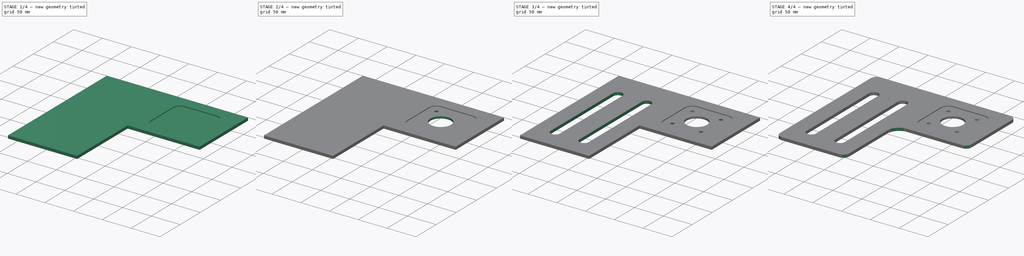
[diagram: build sequence overview — one tinted view per stage of 4, left to right]
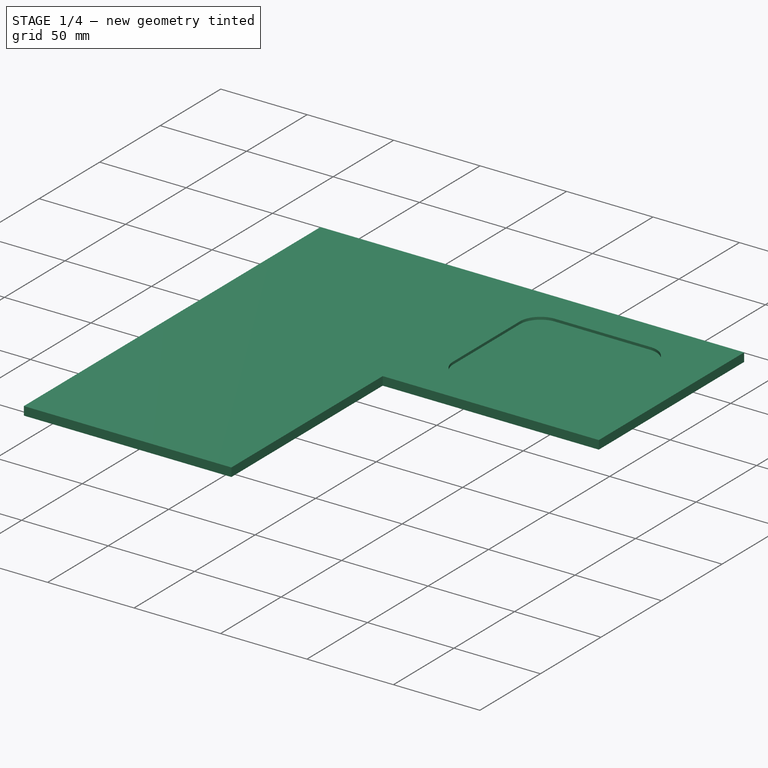
[diagram: stage 1 of 4 — iso view after this stage's code; geometry added in this stage tinted green]
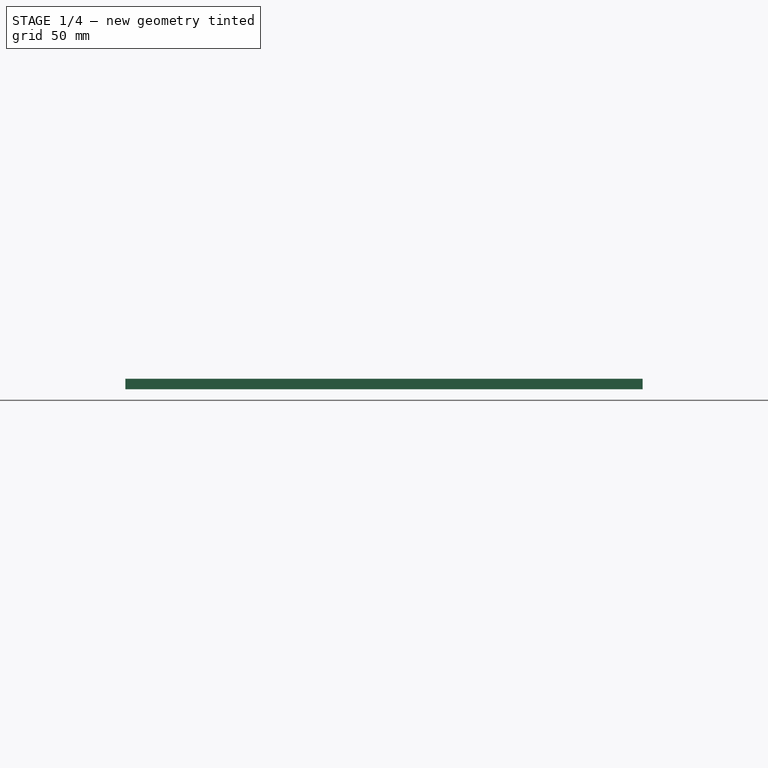
[diagram: stage 1 of 4 — front view after this stage's code; geometry added in this stage tinted green]
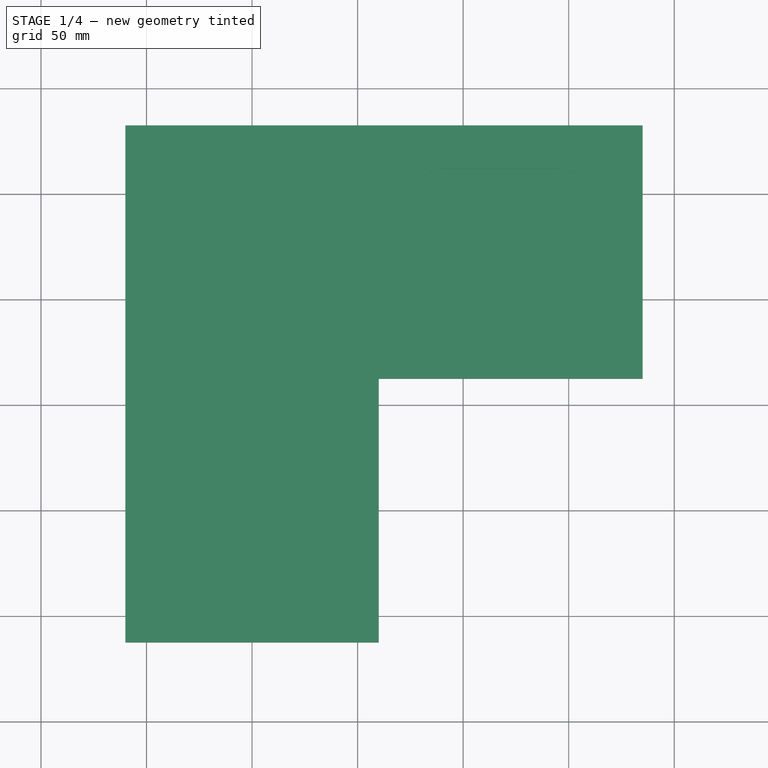
[diagram: stage 1 of 4 — top view after this stage's code; geometry added in this stage tinted green]
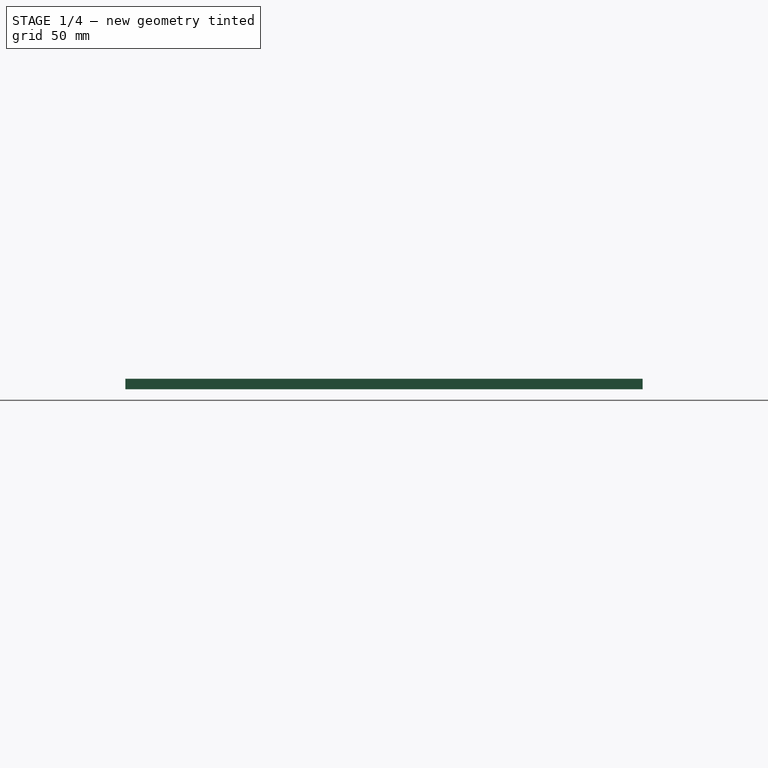
[diagram: stage 1 of 4 — right view after this stage's code; geometry added in this stage tinted green]
FCSTD DOCUMENT  (FreeCAD 0.17R13327 (Git))
Label: MOTORPLATE
License: All rights reserved
LicenseURL: http://en.wikipedia.org/wiki/All_rights_reserved
objects: Sketcher::SketchObject×5, PartDesign::Pocket×4, PartDesign::Fillet×2, PartDesign::Pad×1, PartDesign::Line×1, PartDesign::PolarPattern×1, PartDesign::Mirrored×1, PartDesign::Body×1
note: 21 computed .brp shape members not serialized (recipe doc carries the construction recipe); baked Part::Feature solids carry a one-line shape summary decoded from their .brp

FEATURE [Sketcher::SketchObject] Sketch
  MapMode = 5
  Support = -> [XY_Plane]
  sketch-geometry (6):
    g0: LineSegment StartX=-60 StartY=-62.5 StartZ=0 EndX=-60 EndY=182.5 EndZ=0
    g1: LineSegment StartX=-60 StartY=182.5 StartZ=0 EndX=185 EndY=182.5 EndZ=0
    g2: LineSegment StartX=185 StartY=182.5 StartZ=0 EndX=185 EndY=62.5 EndZ=0
    g3: LineSegment StartX=185 StartY=62.5 StartZ=0 EndX=60 EndY=62.5 EndZ=0
    g4: LineSegment StartX=60 StartY=62.5 StartZ=0 EndX=60 EndY=-62.5 EndZ=0
    g5: LineSegment StartX=60 StartY=-62.5 StartZ=0 EndX=-60 EndY=-62.5 EndZ=0
  constraints (18):
    c: Vertical(g0)
    c: Coincident(g0,g1)
    c: Horizontal(g1)
    c: Coincident(g1,g2)
    c: Vertical(g2)
    c: Coincident(g2,g3)
    c: Horizontal(g3)
    c: Coincident(g3,g4)
    c: Vertical(g4)
    c: Coincident(g4,g5)
    c: Coincident(g5,g0)
    c: Horizontal(g5)
    c: Equal(g3,g4)
    c: Equal(g2,g5)
    c: Symmetric(g0,g4,g-2)
    c: Symmetric(g4,g3,g-1)
    c: DistanceY(g2,g2) = 120
    c: DistanceY(g4,g4) = 125
FEATURE [PartDesign::Pad] Pad
  Length = 5
  Length2 = 100
  Profile = -> Sketch
  Type = 0
FEATURE [Sketcher::SketchObject] Sketch001
  MapMode = 5
  Placement = pos=(0,0,5) rot=(0,0,1;0rad)
  Support = -> [Pad]
  sketch-geometry (8):
    g0: LineSegment StartX=90 StartY=162 StartZ=0 EndX=145 EndY=162 EndZ=0
    g1: LineSegment StartX=157 StartY=150 StartZ=0 EndX=157 EndY=95 EndZ=0
    g2: LineSegment StartX=145 StartY=83 StartZ=0 EndX=90 EndY=83 EndZ=0
    g3: LineSegment StartX=78 StartY=95 StartZ=0 EndX=78 EndY=150 EndZ=0
    g4: ArcOfCircle CenterX=90 CenterY=150 CenterZ=0 NormalX=0 NormalY=0 NormalZ=1 AngleXU=0 Radius=12 StartAngle=1.5708 EndAngle=3.14159
    g5: ArcOfCircle CenterX=145 CenterY=150 CenterZ=0 NormalX=0 NormalY=0 NormalZ=1 AngleXU=0 Radius=12 StartAngle=0 EndAngle=1.5708
    g6: ArcOfCircle CenterX=145 CenterY=95 CenterZ=0 NormalX=0 NormalY=0 NormalZ=1 AngleXU=0 Radius=12 StartAngle=4.71239 EndAngle=6.28319
    g7: ArcOfCircle CenterX=90 CenterY=95 CenterZ=0 NormalX=0 NormalY=0 NormalZ=1 AngleXU=0 Radius=12 StartAngle=3.14159 EndAngle=4.71239
  constraints (22):
    c: Horizontal(g0)
    c: Horizontal(g2)
    c: Vertical(g1)
    c: Vertical(g3)
    c: Tangent(g0,g4) = 1.5708
    c: Tangent(g3,g4) = 1.5708
    c: Tangent(g0,g5) = 1.5708
    c: Tangent(g1,g5) = 1.5708
    c: Tangent(g1,g6) = 1.5708
    c: Tangent(g2,g6) = 1.5708
    c: Tangent(g3,g7) = 1.5708
    c: Tangent(g2,g7) = 1.5708
    c: Equal(g4,g5)
    c: Equal(g5,g6)
    c: Equal(g6,g7)
    c: Equal(g0,g1)
    c: Equal(g1,g2)
    c: Equal(g2,g3)
    c: DistanceY(g3,g3) = 55
    c: Radius(g4) = 12
    c: DistanceX(g7) = 90
    c: DistanceY(g7) = 95
FEATURE [PartDesign::Pocket] Pocket
  BaseFeature = -> Pad
  Length = 1.5
  Length2 = 100
  Profile = -> Sketch001
  Type = 0
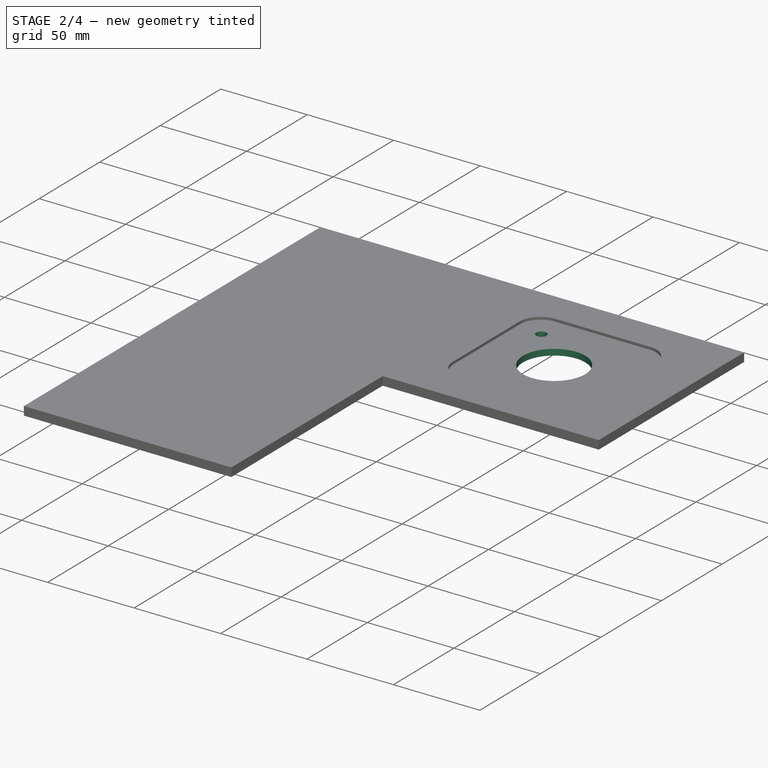
[diagram: stage 2 of 4 — iso view after this stage's code; geometry added in this stage tinted green]
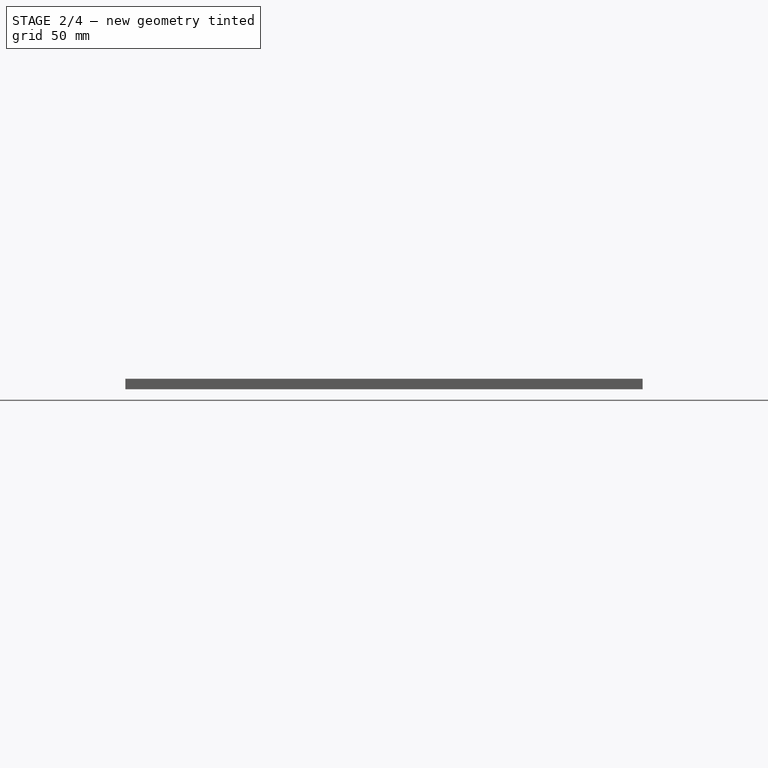
[diagram: stage 2 of 4 — front view after this stage's code; geometry added in this stage tinted green]
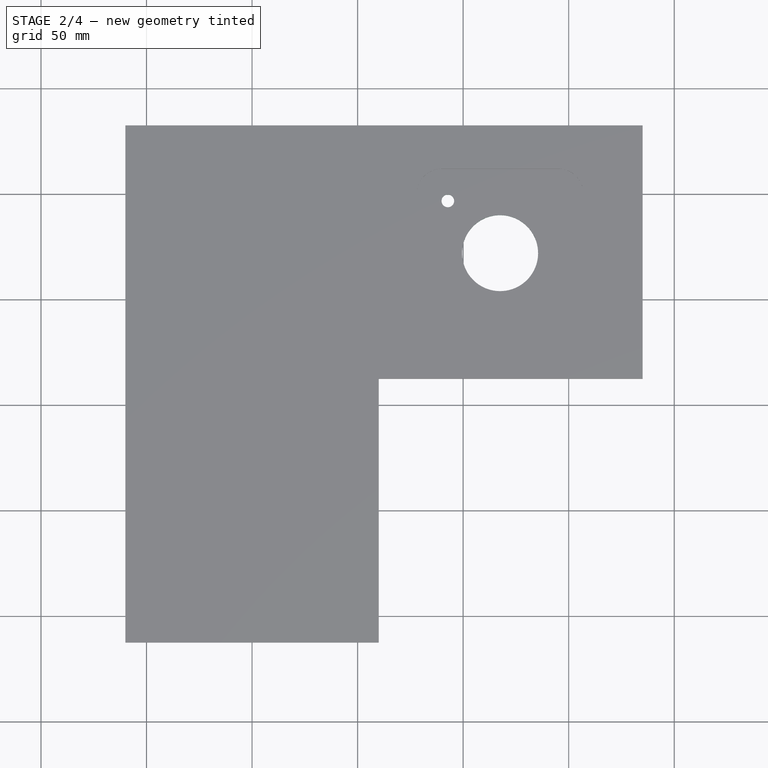
[diagram: stage 2 of 4 — top view after this stage's code; geometry added in this stage tinted green]
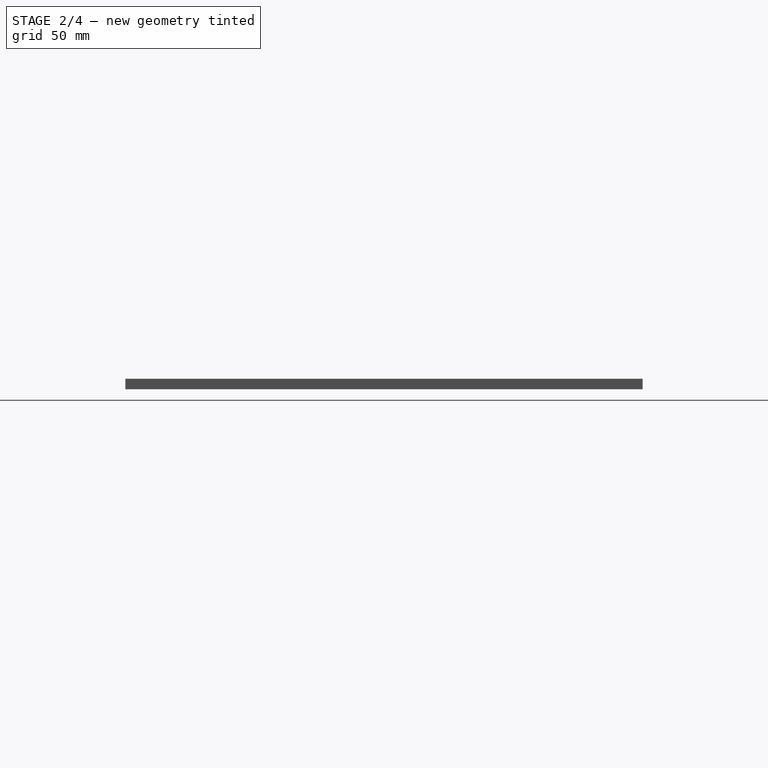
[diagram: stage 2 of 4 — right view after this stage's code; geometry added in this stage tinted green]
FEATURE [Sketcher::SketchObject] Sketch002
  ExternalGeometry = -> [Pocket]
  MapMode = 5
  Placement = pos=(0,0,3.5) rot=(0,0,1;0rad)
  Support = -> [Pocket]
  sketch-geometry (2):
    g0: Circle CenterX=117.5 CenterY=122 CenterZ=0 NormalX=0 NormalY=0 NormalZ=1 AngleXU=0 Radius=18
    g1: LineSegment [constr] StartX=117.5 StartY=122 StartZ=0 EndX=117.5 EndY=162 EndZ=0
  constraints (6):
    c: Coincident(g1,g0)
    c: Vertical(g1)
    c: PointOnObject(g1,g-3)
    c: Symmetric(g-3,g-3,g1)
    c: Radius(g0) = 18
    c: DistanceY(g1,g1) = 40
FEATURE [PartDesign::Pocket] Pocket001
  BaseFeature = -> Pocket
  Length = 5
  Length2 = 100
  Profile = -> Sketch002
  Type = 0
FEATURE [PartDesign::Line] DatumLine
  AttacherType = Attacher::AttachEngineLine
  MapMode = 19
  Placement = pos=(117.5,122,3.5) rot=(0,0,1;0rad)
  Support = -> [Pocket001]
FEATURE [Sketcher::SketchObject] Sketch003
  ExternalGeometry = -> [Pocket001]
  MapMode = 5
  Placement = pos=(0,0,3.5) rot=(0,0,1;0rad)
  Support = -> [Pocket001]
  sketch-geometry (2):
    g0: Circle CenterX=92.7513 CenterY=146.749 CenterZ=0 NormalX=0 NormalY=0 NormalZ=1 AngleXU=0 Radius=3
    g1: LineSegment [constr] StartX=92.7513 StartY=146.749 StartZ=0 EndX=117.5 EndY=122 EndZ=0
  constraints (5):
    c: Radius(g0) = 3
    c: Coincident(g1,g0)
    c: Coincident(g1,g-3)
    c: Distance(g1) = 35
    c: Angle(g1) = -0.785398
FEATURE [PartDesign::Pocket] Pocket002
  BaseFeature = -> Pocket001
  Length = 5
  Length2 = 100
  Profile = -> Sketch003
  Type = 0
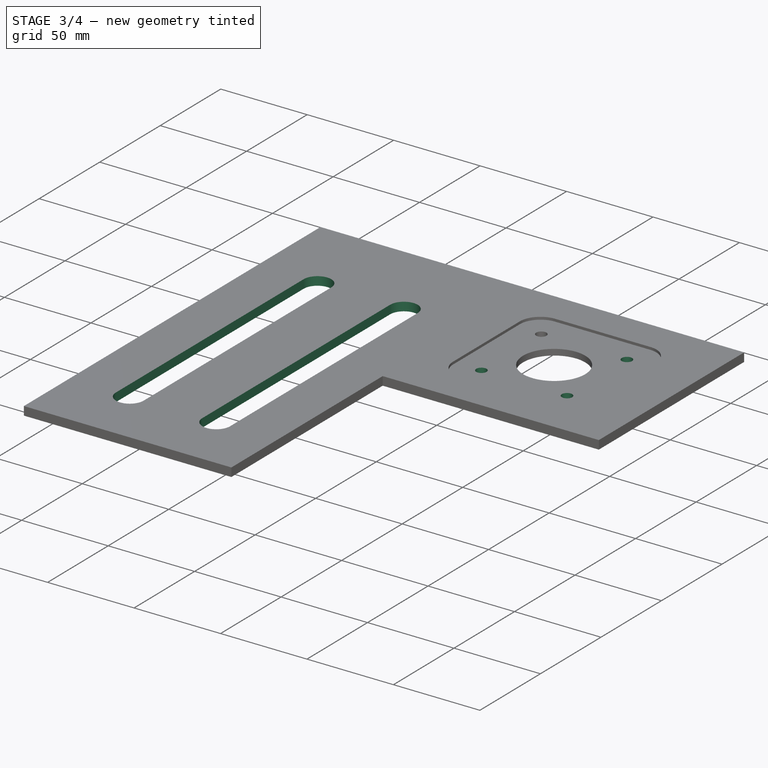
[diagram: stage 3 of 4 — iso view after this stage's code; geometry added in this stage tinted green]
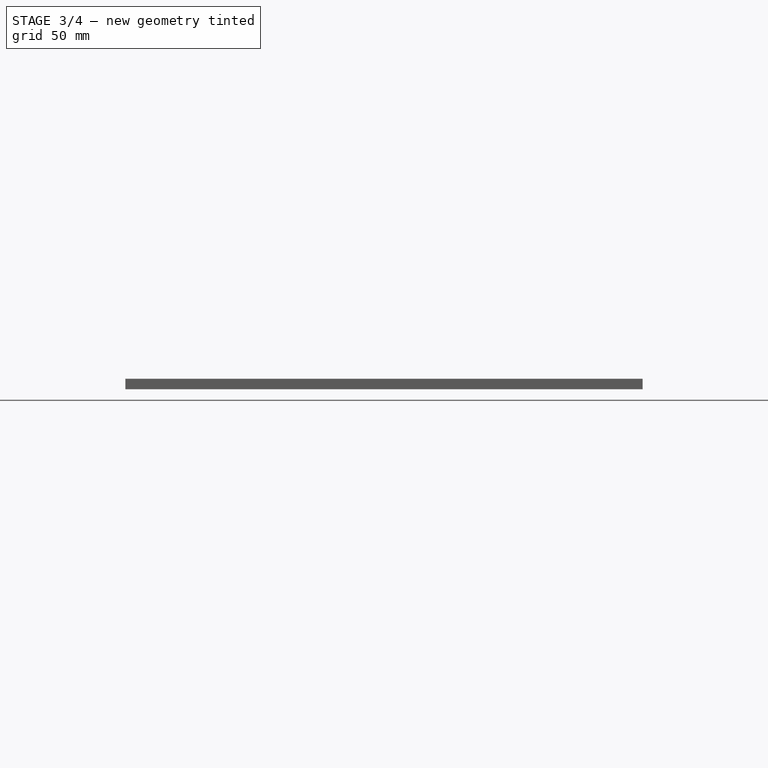
[diagram: stage 3 of 4 — front view after this stage's code; geometry added in this stage tinted green]
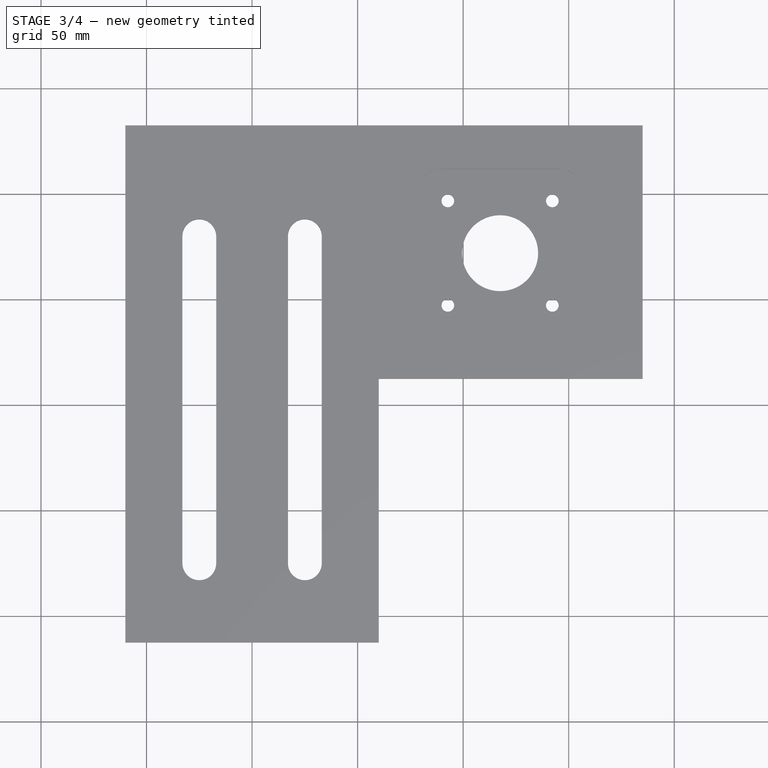
[diagram: stage 3 of 4 — top view after this stage's code; geometry added in this stage tinted green]
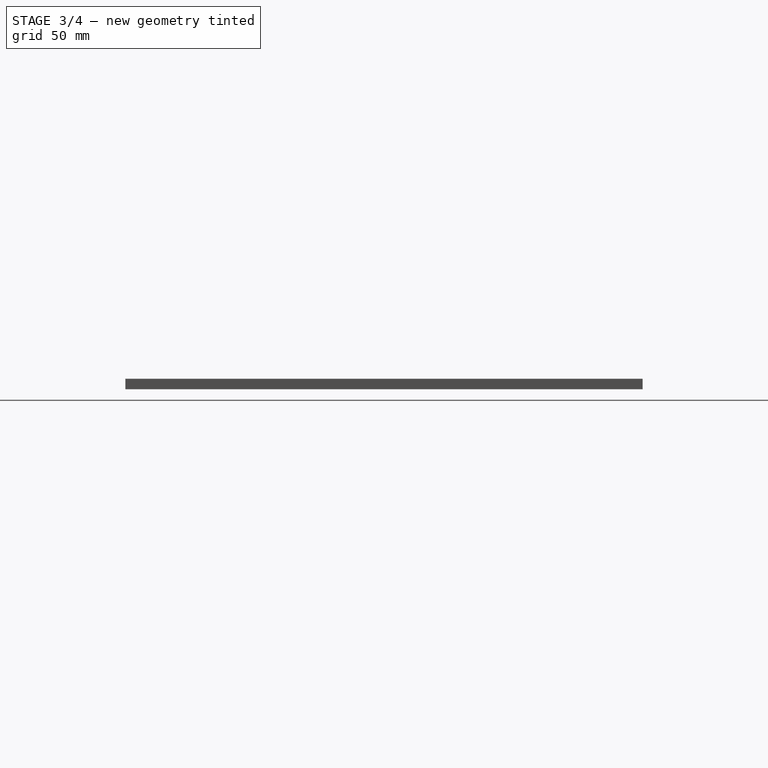
[diagram: stage 3 of 4 — right view after this stage's code; geometry added in this stage tinted green]
FEATURE [PartDesign::PolarPattern] PolarPattern
  Angle = 360
  Axis = -> DatumLine
  BaseFeature = -> Pocket002
  Occurrences = 4
  Originals = -> [Pocket002]
FEATURE [Sketcher::SketchObject] Sketch004
  MapMode = 5
  Placement = pos=(0,0,5) rot=(0,0,1;0rad)
  Support = -> [PolarPattern]
  sketch-geometry (4):
    g0: ArcOfCircle CenterX=-25 CenterY=-25 CenterZ=0 NormalX=0 NormalY=0 NormalZ=1 AngleXU=0 Radius=8 StartAngle=3.14159 EndAngle=6.28319
    g1: ArcOfCircle CenterX=-25 CenterY=130 CenterZ=0 NormalX=0 NormalY=0 NormalZ=1 AngleXU=0 Radius=8 StartAngle=0 EndAngle=3.14159
    g2: LineSegment StartX=-17 StartY=-25 StartZ=0 EndX=-17 EndY=130 EndZ=0
    g3: LineSegment StartX=-33 StartY=-25 StartZ=0 EndX=-33 EndY=130 EndZ=0
  constraints (10):
    c: Tangent(g0,g3) = 1.5708
    c: Tangent(g0,g2) = -1.5708
    c: Tangent(g2,g1) = -1.5708
    c: Tangent(g3,g1) = 1.5708
    c: Vertical(g2)
    c: Equal(g0,g1)
    c: Radius(g1) = 8
    c: DistanceY(g2,g2) = 155
    c: DistanceX(g0) = -25
    c: DistanceY(g0) = -25
FEATURE [PartDesign::Pocket] Pocket003
  BaseFeature = -> PolarPattern
  Length = 5
  Length2 = 100
  Profile = -> Sketch004
  Type = 0
FEATURE [PartDesign::Mirrored] Mirrored
  BaseFeature = -> Pocket003
  MirrorPlane = -> YZ_Plane
  Originals = -> [Pocket003]
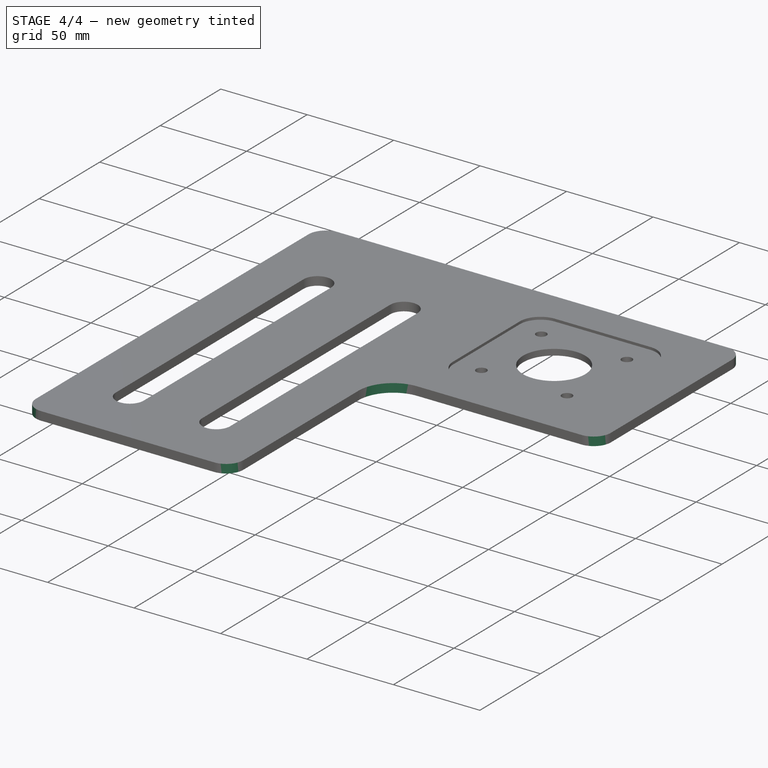
[diagram: stage 4 of 4 — iso view after this stage's code; geometry added in this stage tinted green]
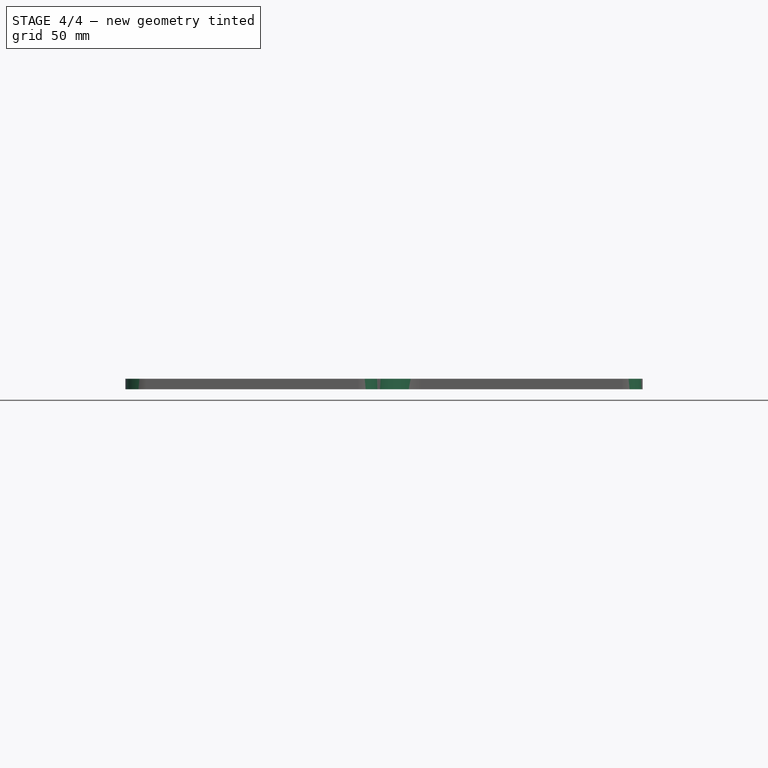
[diagram: stage 4 of 4 — front view after this stage's code; geometry added in this stage tinted green]
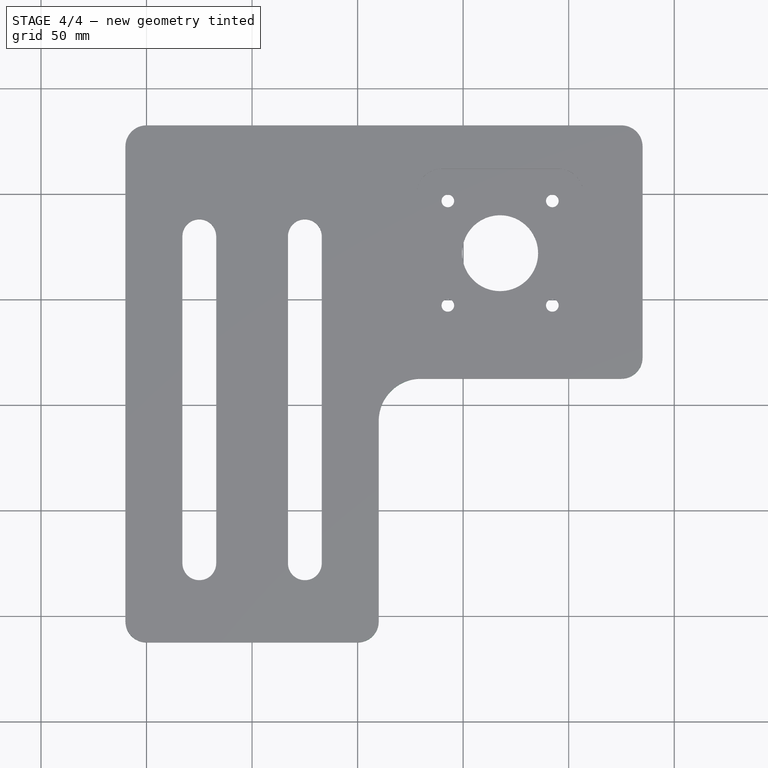
[diagram: stage 4 of 4 — top view after this stage's code; geometry added in this stage tinted green]
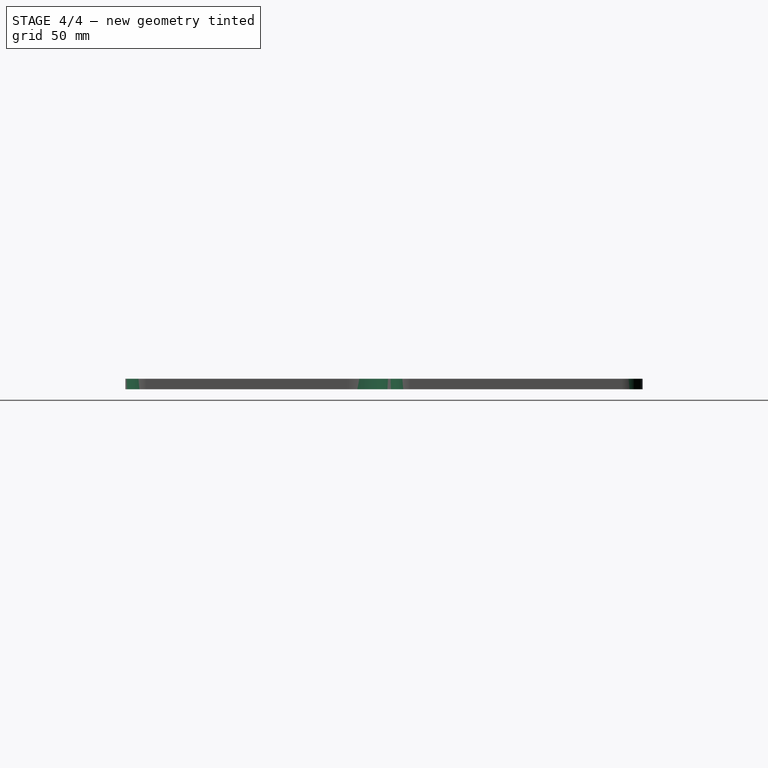
[diagram: stage 4 of 4 — right view after this stage's code; geometry added in this stage tinted green]
FEATURE [PartDesign::Fillet] Fillet
  Base = -> Mirrored [Edge47,Edge5,Edge8,Edge2,Edge1]
  BaseFeature = -> Mirrored
  Radius = 10
FEATURE [PartDesign::Fillet] Fillet001
  Base = -> Fillet [Edge60]
  BaseFeature = -> Fillet
  Radius = 20
FEATURE [PartDesign::Body] Body  label="MOTORPLATE"
  Group = -> [Sketch,Pad,Sketch001,Pocket,Sketch002,Pocket001,DatumLine,Sketch003,Pocket002,PolarPattern,Sketch004,Pocket003,Mirrored,Fillet,Fillet001]
  Origin = -> Origin
  Tip = -> Fillet001
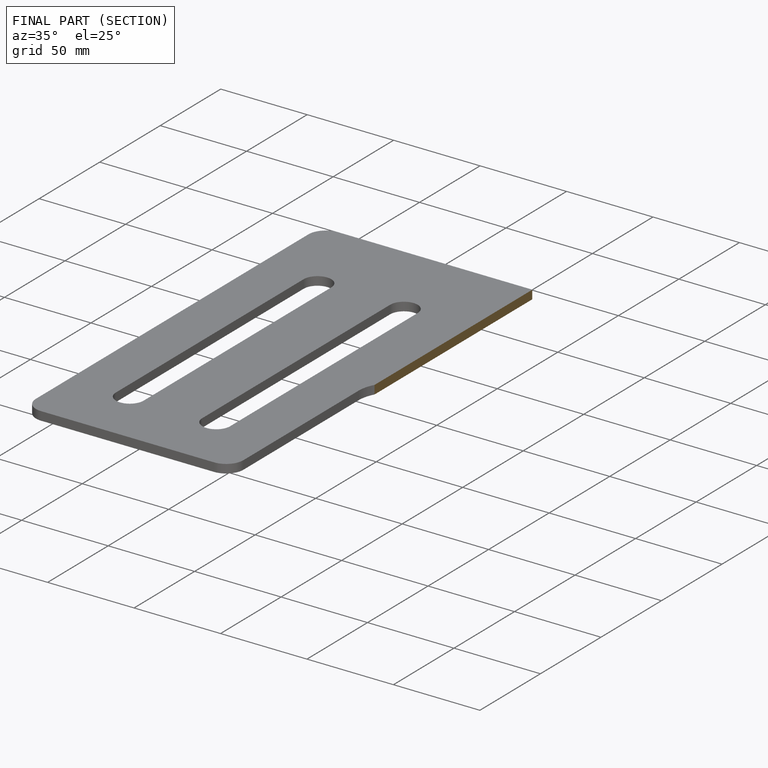
[diagram: finished part — half-section view (interior)]
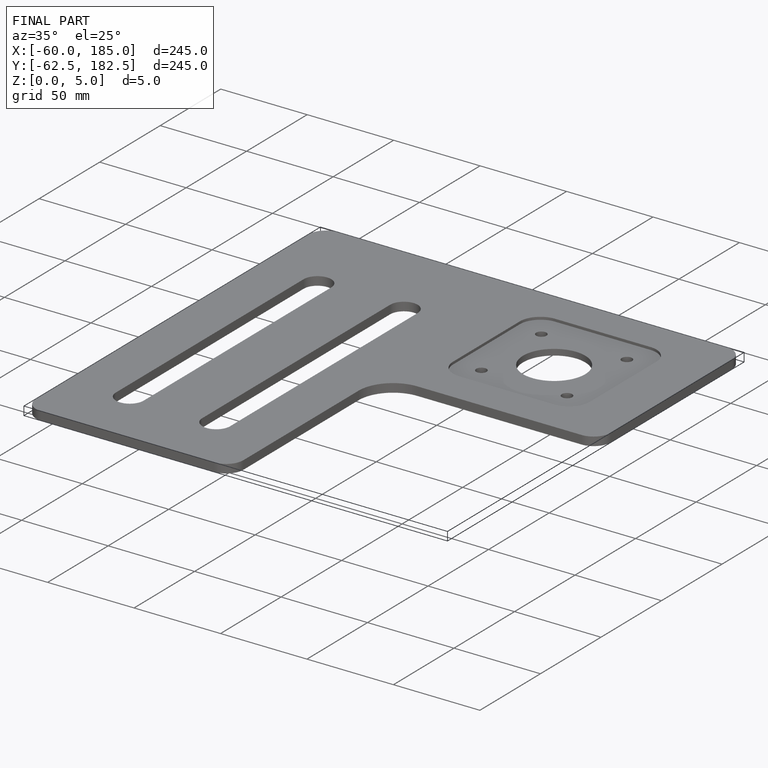
[diagram: finished part — iso view with bounding-box wireframe]
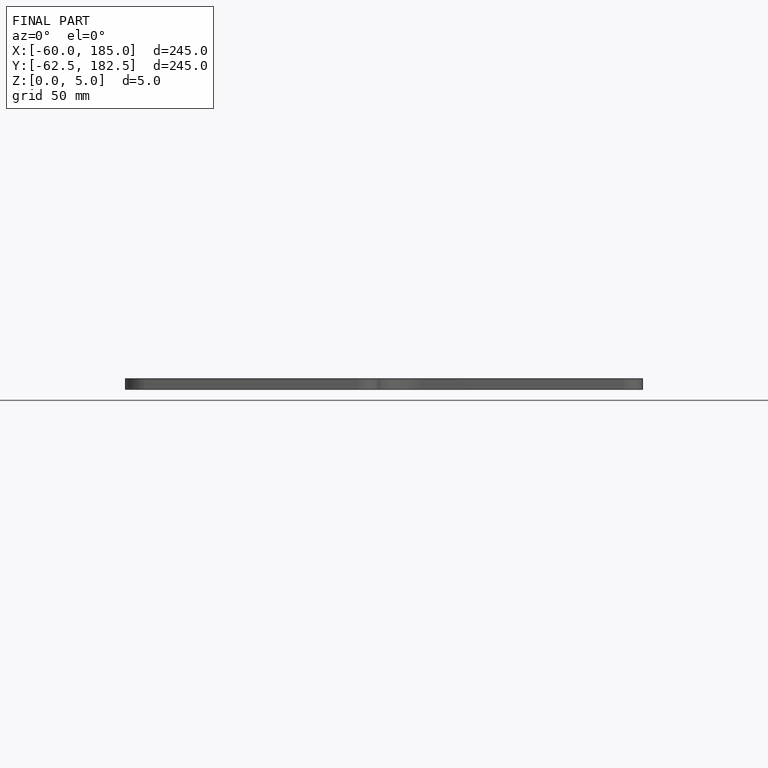
[diagram: finished part — front view with bounding-box wireframe]
